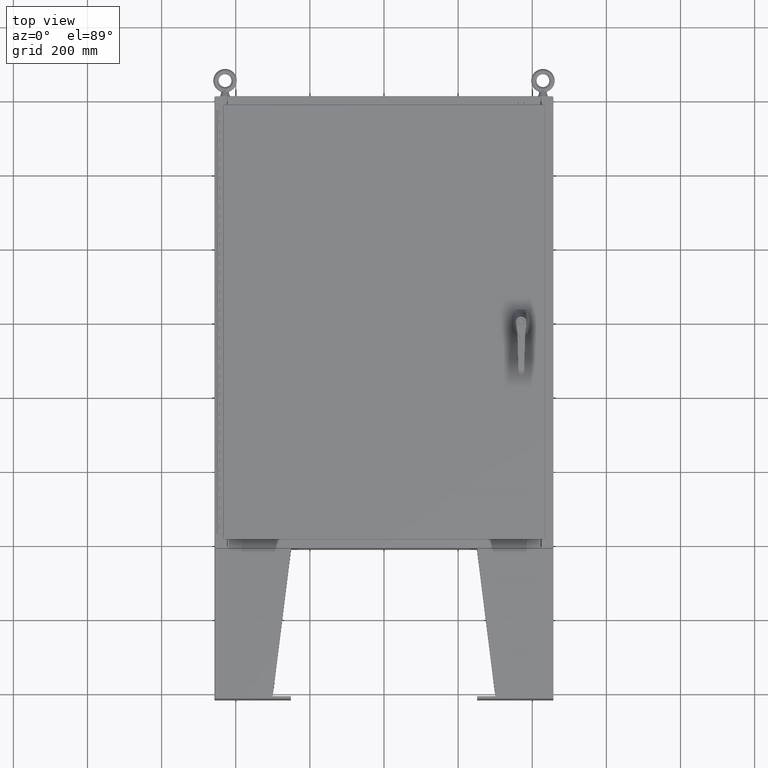
[diagram: clean part render]
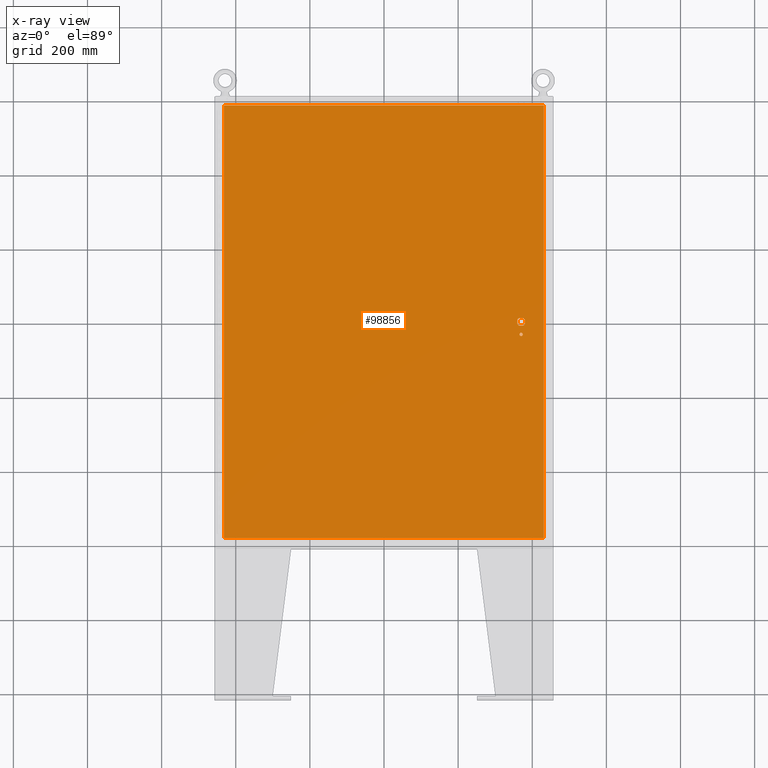
[diagram: x-ray — body ghosted, one internal face saturated and labeled with its STEP entity id]
A machine part, top view, then the same camera in x-ray: the body is ghosted and one INTERNAL B-rep face — a face not visible from any outside direction — is saturated and labeled: STEP entity #98856.
In plain terms, the highlighted planar face has unit normal (0, 0, -1).
Its self-contained STEP definition (entity closure, byte-faithful):
#906 = ORIENTED_EDGE ( 'NONE', *, *, #37240, .T. ) ;
#1695 = EDGE_LOOP ( 'NONE', ( #27712, #62741, #49325, #63517, #74045, #44624, #906, #102719 ) ) ;
#2215 = CARTESIAN_POINT ( 'NONE',  ( 0.0000000000000000000, 0.4029999999999252000, -0.07470000000000003000 ) ) ;
#2264 = DIRECTION ( 'NONE',  ( 0.0000000000000000000, -1.000000000000000000, 0.0000000000000000000 ) ) ;
#2674 = CIRCLE ( 'NONE', #54127, 0.4499999999999168000 ) ;
#4101 = CARTESIAN_POINT ( 'NONE',  ( 0.0000000000000000000, -0.4029999999999252000, -0.07470000000000003000 ) ) ;
#4336 = LINE ( 'NONE', #109399, #85817 ) ;
#5751 = CARTESIAN_POINT ( 'NONE',  ( 16.99029999999999800, -23.00630000000000000, -0.07470000000000000300 ) ) ;
#6429 = VERTEX_POINT ( 'NONE', #36483 ) ;
#7355 = DIRECTION ( 'NONE',  ( -1.000000000000000000, -1.776356839400246700E-015, 0.0000000000000000000 ) ) ;
#8337 = DIRECTION ( 'NONE',  ( 5.457491617345625800E-015, -1.000000000000000000, 0.0000000000000000000 ) ) ;
#9063 = FACE_OUTER_BOUND ( 'NONE', #31127, .T. ) ;
#12772 = ORIENTED_EDGE ( 'NONE', *, *, #68049, .F. ) ;
#12950 = DIRECTION ( 'NONE',  ( -1.000000000000000000, 0.0000000000000000000, 0.0000000000000000000 ) ) ;
#15236 = LINE ( 'NONE', #82208, #71705 ) ;
#15771 = DIRECTION ( 'NONE',  ( -0.0000000000000000000, -0.0000000000000000000, 1.000000000000000000 ) ) ;
#15848 = VERTEX_POINT ( 'NONE', #5751 ) ;
#16359 = CARTESIAN_POINT ( 'NONE',  ( 14.37777262924369000, -0.4029999999999250300, -0.07470000000000003000 ) ) ;
#18204 = CIRCLE ( 'NONE', #92007, 0.1715000000000011500 ) ;
#18888 = LINE ( 'NONE', #109471, #128540 ) ;
#19932 = EDGE_CURVE ( 'NONE', #70772, #50215, #2674, .T. ) ;
#20818 = VERTEX_POINT ( 'NONE', #103600 ) ;
#21330 = ORIENTED_EDGE ( 'NONE', *, *, #97205, .F. ) ;
#24817 = EDGE_CURVE ( 'NONE', #123792, #92846, #15236, .T. ) ;
#25340 = CARTESIAN_POINT ( 'NONE',  ( 14.57799999999999900, 0.0000000000000000000, -0.07470000000000003000 ) ) ;
#27155 = EDGE_CURVE ( 'NONE', #6429, #117516, #18204, .T. ) ;
#27712 = ORIENTED_EDGE ( 'NONE', *, *, #119129, .T. ) ;
#28509 = ORIENTED_EDGE ( 'NONE', *, *, #42715, .T. ) ;
#28988 = CARTESIAN_POINT ( 'NONE',  ( 16.99029999999999800, -23.00630000000000300, -0.07470000000000019700 ) ) ;
#29349 = DIRECTION ( 'NONE',  ( -1.000000000000000000, -0.0000000000000000000, -0.0000000000000000000 ) ) ;
#30415 = DIRECTION ( 'NONE',  ( -0.0000000000000000000, -0.0000000000000000000, 1.000000000000000000 ) ) ;
#31127 = EDGE_LOOP ( 'NONE', ( #12772, #21330, #51927, #68725 ) ) ;
#33452 = AXIS2_PLACEMENT_3D ( 'NONE', #79348, #15771, #90080 ) ;
#34153 = EDGE_CURVE ( 'NONE', #70772, #55058, #103650, .T. ) ;
#35131 = DIRECTION ( 'NONE',  ( 1.000000000000000000, -0.0000000000000000000, -0.0000000000000000000 ) ) ;
#36017 = DIRECTION ( 'NONE',  ( -1.000000000000000000, -1.776356839400246700E-015, 0.0000000000000000000 ) ) ;
#36483 = CARTESIAN_POINT ( 'NONE',  ( 14.40649999999999800, -1.338000000000000100, -0.07470000000000003000 ) ) ;
#37240 = EDGE_CURVE ( 'NONE', #20818, #113917, #85015, .T. ) ;
#38014 = VERTEX_POINT ( 'NONE', #137247 ) ;
#40667 = FACE_BOUND ( 'NONE', #118821, .T. ) ;
#42715 = EDGE_CURVE ( 'NONE', #117516, #6429, #115656, .T. ) ;
#44624 = ORIENTED_EDGE ( 'NONE', *, *, #88469, .T. ) ;
#45621 = VECTOR ( 'NONE', #12950, 39.37007874015748100 ) ;
#45932 = CARTESIAN_POINT ( 'NONE',  ( -16.99029999999999800, -23.00630000000000000, -0.07470000000000000300 ) ) ;
#47433 = VERTEX_POINT ( 'NONE', #77613 ) ;
#48333 = CARTESIAN_POINT ( 'NONE',  ( 14.17500000000007400, 0.2002273707563075900, -0.07470000000000003000 ) ) ;
#49061 = DIRECTION ( 'NONE',  ( 0.0000000000000000000, 0.0000000000000000000, -1.000000000000000000 ) ) ;
#49325 = ORIENTED_EDGE ( 'NONE', *, *, #19932, .T. ) ;
#50215 = VERTEX_POINT ( 'NONE', #84214 ) ;
#50629 = VERTEX_POINT ( 'NONE', #48333 ) ;
#51927 = ORIENTED_EDGE ( 'NONE', *, *, #127334, .F. ) ;
#53025 = DIRECTION ( 'NONE',  ( -0.0000000000000000000, -0.0000000000000000000, 1.000000000000000000 ) ) ;
#54127 = AXIS2_PLACEMENT_3D ( 'NONE', #120420, #56790, #131115 ) ;
#55058 = VERTEX_POINT ( 'NONE', #100550 ) ;
#55834 = LINE ( 'NONE', #129521, #109046 ) ;
#56790 = DIRECTION ( 'NONE',  ( -0.0000000000000000000, -0.0000000000000000000, 1.000000000000000000 ) ) ;
#57517 = DIRECTION ( 'NONE',  ( 1.000000000000000000, 0.0000000000000000000, 0.0000000000000000000 ) ) ;
#58940 = EDGE_CURVE ( 'NONE', #50215, #47433, #102121, .T. ) ;
#62741 = ORIENTED_EDGE ( 'NONE', *, *, #34153, .F. ) ;
#63383 = CARTESIAN_POINT ( 'NONE',  ( 16.99029999999999800, 23.00630000000000300, -0.07470000000000000300 ) ) ;
#63517 = ORIENTED_EDGE ( 'NONE', *, *, #58940, .T. ) ;
#64702 = AXIS2_PLACEMENT_3D ( 'NONE', #25340, #99597, #36017 ) ;
#68049 = EDGE_CURVE ( 'NONE', #15848, #123792, #109995, .T. ) ;
#68725 = ORIENTED_EDGE ( 'NONE', *, *, #24817, .F. ) ;
#70772 = VERTEX_POINT ( 'NONE', #109817 ) ;
#70806 = AXIS2_PLACEMENT_3D ( 'NONE', #94011, #30415, #104673 ) ;
#70954 = DIRECTION ( 'NONE',  ( -0.0000000000000000000, -0.0000000000000000000, 1.000000000000000000 ) ) ;
#71705 = VECTOR ( 'NONE', #29349, 39.37007874015748100 ) ;
#71932 = CARTESIAN_POINT ( 'NONE',  ( 14.98099999999992700, 8.175868191945441800E-014, -0.07470000000000003000 ) ) ;
#71996 = VECTOR ( 'NONE', #8337, 39.37007874015748100 ) ;
#72083 = CIRCLE ( 'NONE', #70806, 0.4499999999999168000 ) ;
#74045 = ORIENTED_EDGE ( 'NONE', *, *, #103962, .T. ) ;
#74876 = AXIS2_PLACEMENT_3D ( 'NONE', #134589, #70954, #7355 ) ;
#77175 = EDGE_CURVE ( 'NONE', #113917, #38014, #124828, .T. ) ;
#77613 = CARTESIAN_POINT ( 'NONE',  ( 14.37777262924369000, 0.4029999999999252000, -0.07470000000000003000 ) ) ;
#79348 = CARTESIAN_POINT ( 'NONE',  ( 14.57799999999999900, -1.338000000000000100, -0.07470000000000003000 ) ) ;
#81758 = VECTOR ( 'NONE', #102299, 39.37007874015748100 ) ;
#82208 = CARTESIAN_POINT ( 'NONE',  ( 16.99029999999999800, 23.00630000000001000, -0.07469999999999804600 ) ) ;
#84214 = CARTESIAN_POINT ( 'NONE',  ( 14.77822737075630900, 0.4029999999999250300, -0.07470000000000003000 ) ) ;
#85015 = CIRCLE ( 'NONE', #74876, 0.4499999999999168000 ) ;
#85817 = VECTOR ( 'NONE', #35131, 39.37007874015748100 ) ;
#88469 = EDGE_CURVE ( 'NONE', #50629, #20818, #18888, .T. ) ;
#90080 = DIRECTION ( 'NONE',  ( -1.000000000000000000, 0.0000000000000000000, 0.0000000000000000000 ) ) ;
#91218 = CARTESIAN_POINT ( 'NONE',  ( 14.74950000000000100, -1.338000000000000100, -0.07470000000000003000 ) ) ;
#91328 = PLANE ( 'NONE',  #108726 ) ;
#92007 = AXIS2_PLACEMENT_3D ( 'NONE', #116655, #53025, #127364 ) ;
#92846 = VERTEX_POINT ( 'NONE', #109025 ) ;
#93287 = VECTOR ( 'NONE', #57517, 39.37007874015748100 ) ;
#94011 = CARTESIAN_POINT ( 'NONE',  ( 14.57799999999999900, 0.0000000000000000000, -0.07470000000000003000 ) ) ;
#97205 = EDGE_CURVE ( 'NONE', #136202, #15848, #4336, .T. ) ;
#98856 = ADVANCED_FACE ( 'NONE', ( #40667, #9063, #118693 ), #91328, .T. ) ;
#99597 = DIRECTION ( 'NONE',  ( -0.0000000000000000000, -0.0000000000000000000, 1.000000000000000000 ) ) ;
#100550 = CARTESIAN_POINT ( 'NONE',  ( 14.98099999999992700, -0.2002273707563067300, -0.07470000000000003000 ) ) ;
#102121 = LINE ( 'NONE', #2215, #45621 ) ;
#102299 = DIRECTION ( 'NONE',  ( 0.0000000000000000000, 1.000000000000000000, 0.0000000000000000000 ) ) ;
#102719 = ORIENTED_EDGE ( 'NONE', *, *, #77175, .T. ) ;
#103600 = CARTESIAN_POINT ( 'NONE',  ( 14.17500000000007400, -0.2002273707563079800, -0.07470000000000003000 ) ) ;
#103650 = LINE ( 'NONE', #71932, #71996 ) ;
#103962 = EDGE_CURVE ( 'NONE', #47433, #50629, #72083, .T. ) ;
#104673 = DIRECTION ( 'NONE',  ( -1.000000000000000000, -5.329070518200740300E-015, 0.0000000000000000000 ) ) ;
#106494 = CIRCLE ( 'NONE', #64702, 0.4499999999999168000 ) ;
#108726 = AXIS2_PLACEMENT_3D ( 'NONE', #112658, #49061, #123343 ) ;
#109025 = CARTESIAN_POINT ( 'NONE',  ( -16.99029999999999400, 23.00630000000000300, -0.07470000000000000300 ) ) ;
#109046 = VECTOR ( 'NONE', #2264, 39.37007874015748100 ) ;
#109399 = CARTESIAN_POINT ( 'NONE',  ( -16.99029999999999800, -23.00630000000000300, -0.07469999999999804600 ) ) ;
#109471 = CARTESIAN_POINT ( 'NONE',  ( 14.17500000000007400, 0.0000000000000000000, -0.07470000000000003000 ) ) ;
#109536 = ORIENTED_EDGE ( 'NONE', *, *, #27155, .T. ) ;
#109817 = CARTESIAN_POINT ( 'NONE',  ( 14.98099999999992700, 0.2002273707563075900, -0.07470000000000003000 ) ) ;
#109995 = LINE ( 'NONE', #28988, #81758 ) ;
#112658 = CARTESIAN_POINT ( 'NONE',  ( 0.0000000000000000000, 0.0000000000000000000, -0.07470000000000000300 ) ) ;
#113917 = VERTEX_POINT ( 'NONE', #16359 ) ;
#115656 = CIRCLE ( 'NONE', #33452, 0.1715000000000011500 ) ;
#116655 = CARTESIAN_POINT ( 'NONE',  ( 14.57799999999999900, -1.338000000000000100, -0.07470000000000003000 ) ) ;
#117516 = VERTEX_POINT ( 'NONE', #91218 ) ;
#118693 = FACE_BOUND ( 'NONE', #1695, .T. ) ;
#118821 = EDGE_LOOP ( 'NONE', ( #28509, #109536 ) ) ;
#119129 = EDGE_CURVE ( 'NONE', #38014, #55058, #106494, .T. ) ;
#120088 = DIRECTION ( 'NONE',  ( 0.0000000000000000000, -1.000000000000000000, 0.0000000000000000000 ) ) ;
#120420 = CARTESIAN_POINT ( 'NONE',  ( 14.57799999999999900, 0.0000000000000000000, -0.07470000000000003000 ) ) ;
#123343 = DIRECTION ( 'NONE',  ( -1.000000000000000000, 0.0000000000000000000, -0.0000000000000000000 ) ) ;
#123792 = VERTEX_POINT ( 'NONE', #63383 ) ;
#124828 = LINE ( 'NONE', #4101, #93287 ) ;
#127334 = EDGE_CURVE ( 'NONE', #92846, #136202, #55834, .T. ) ;
#127364 = DIRECTION ( 'NONE',  ( -1.000000000000000000, 0.0000000000000000000, 0.0000000000000000000 ) ) ;
#128540 = VECTOR ( 'NONE', #120088, 39.37007874015748100 ) ;
#129521 = CARTESIAN_POINT ( 'NONE',  ( -16.99029999999999400, 23.00630000000001000, -0.07470000000000129300 ) ) ;
#131115 = DIRECTION ( 'NONE',  ( -1.000000000000000000, -5.329070518200740300E-015, 0.0000000000000000000 ) ) ;
#134589 = CARTESIAN_POINT ( 'NONE',  ( 14.57799999999999900, 0.0000000000000000000, -0.07470000000000003000 ) ) ;
#136202 = VERTEX_POINT ( 'NONE', #45932 ) ;
#137247 = CARTESIAN_POINT ( 'NONE',  ( 14.77822737075630900, -0.4029999999999252000, -0.07470000000000003000 ) ) ;